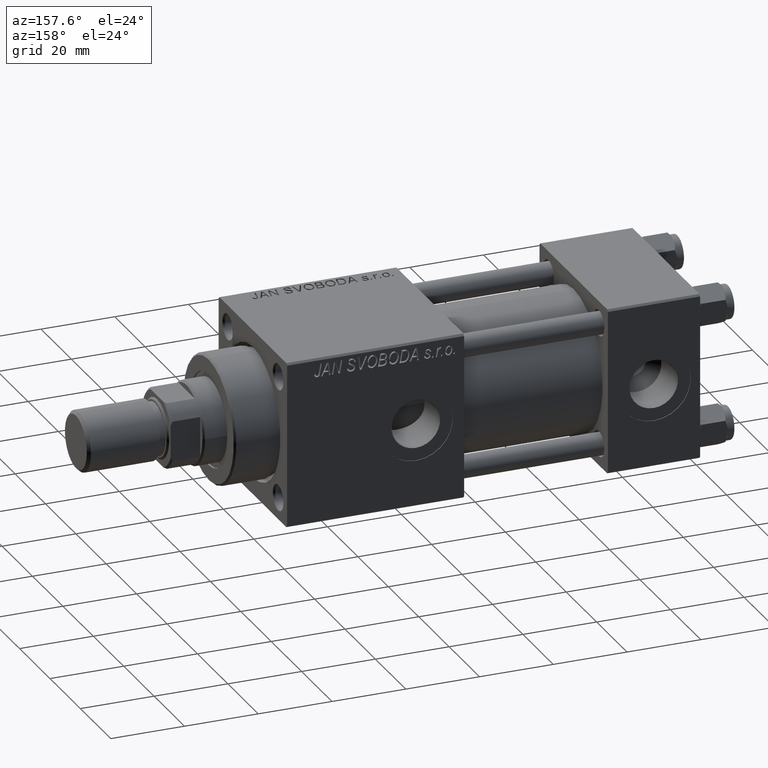
[diagram: clean part render]
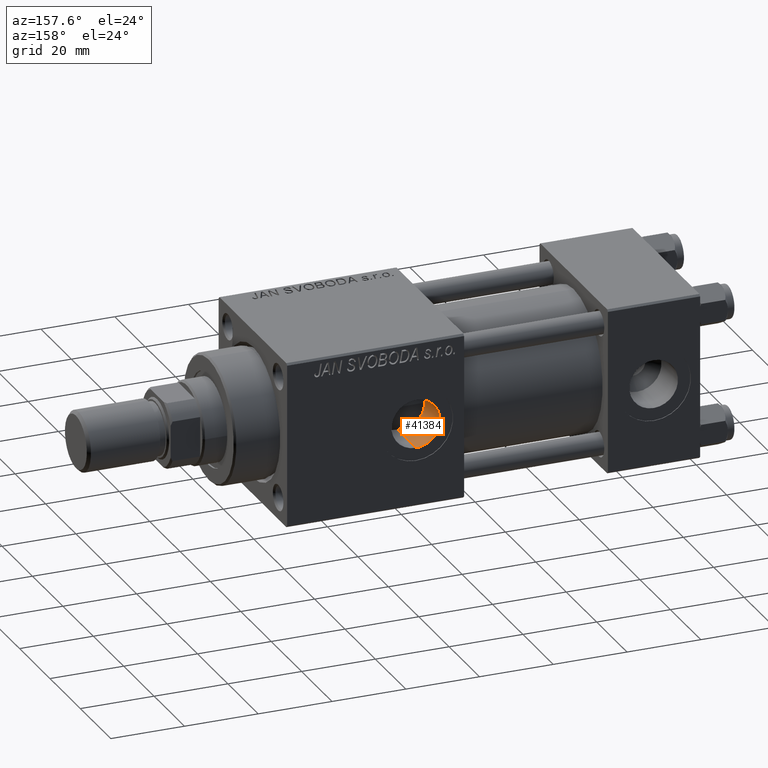
[diagram: same view with one face highlighted and labeled with its STEP entity id]
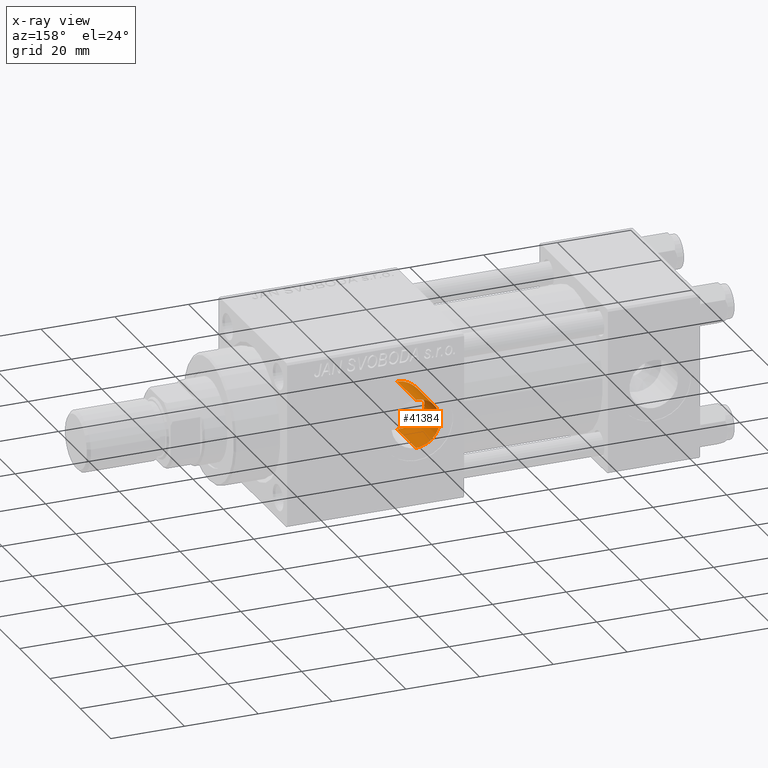
[diagram: x-ray of the same camera — body ghosted, the highlighted face saturated]
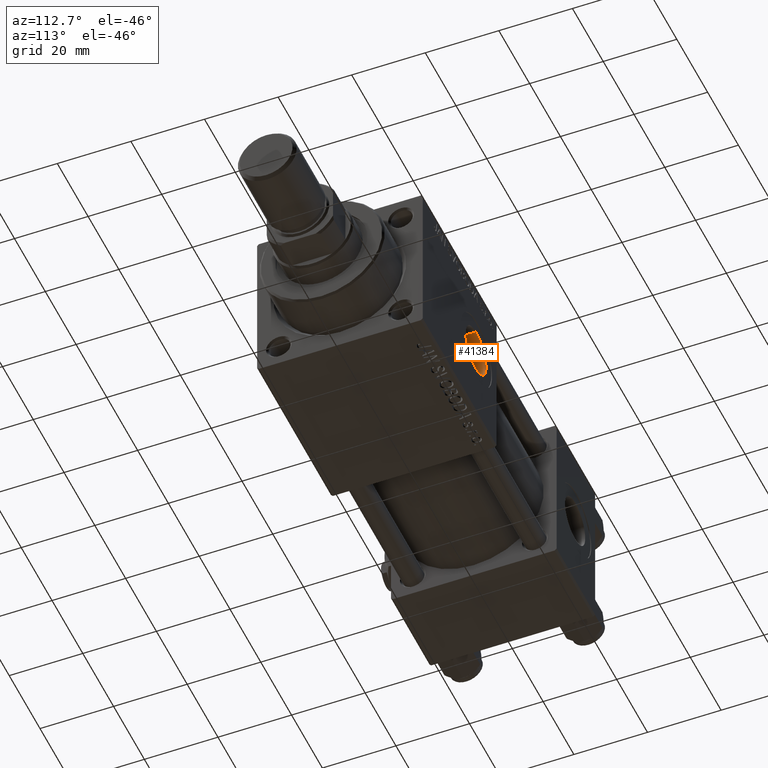
[diagram: same view with one face highlighted and labeled with its STEP entity id]
A machine part, auxiliary view. The second image highlights one B-rep face of the part: STEP entity #41384.
The next image is the same camera in x-ray: the body ghosted, the highlighted face saturated — about 0% of this face is hidden behind the body in this view.
A second angle (auxiliary view) of the same face is appended — the face is thin or edge-on in the first view.
In plain terms, the highlighted cylindrical surface (edge-blend (fillet) strip) has radius 6.58 mm, axis along (0, 1, 0).
Its self-contained STEP definition (entity closure, byte-faithful):
#180 = EDGE_LOOP ( 'NONE', ( #36654, #46548, #32559, #22689 ) ) ;
#218 = DIRECTION ( 'NONE',  ( -0.000000000000000000, 1.000000000000000000, -0.000000000000000000 ) ) ;
#461 = DIRECTION ( 'NONE',  ( -0.000000000000000000, 1.000000000000000000, -0.000000000000000000 ) ) ;
#575 = CARTESIAN_POINT ( 'NONE',  ( 70.59478156013234695, 11.90500205299394310, -1.522465113034438655 ) ) ;
#2412 = CARTESIAN_POINT ( 'NONE',  ( 73.69397546101072294, 10.56415267499855126, 5.693150710628731126 ) ) ;
#4576 = CARTESIAN_POINT ( 'NONE',  ( 71.30335276287507895, 11.53738015798572292, -3.320885605816852326 ) ) ;
#4831 = CARTESIAN_POINT ( 'NONE',  ( 75.90265550075739043, 10.09272257990949839, -6.491501553408994596 ) ) ;
#5614 = CARTESIAN_POINT ( 'NONE',  ( 72.65626215650318898, 10.93152481304933765, 4.960425101894932354 ) ) ;
#6405 = CARTESIAN_POINT ( 'NONE',  ( 73.50993103169334120, 10.62340520694157853, 5.582197786858907662 ) ) ;
#8809 = CARTESIAN_POINT ( 'NONE',  ( 75.47614133841480566, 10.14795690498758596, -6.404811640278047058 ) ) ;
#9225 = LINE ( 'NONE', #44658, #17212 ) ;
#9327 = CARTESIAN_POINT ( 'NONE',  ( 70.46469131803905839, 11.97532927873728958, 0.8814389111818408118 ) ) ;
#12302 = CARTESIAN_POINT ( 'NONE',  ( 77.00000000000000000, 22.30000000000000426, 6.580000000000002736 ) ) ;
#13124 = DIRECTION ( 'NONE',  ( 0.000000000000000000, 1.000000000000000000, 0.000000000000000000 ) ) ;
#13311 = EDGE_CURVE ( 'NONE', #31144, #50586, #22849, .T. ) ;
#13314 = CARTESIAN_POINT ( 'NONE',  ( 75.26606298117775395, 10.18178878898818596, -6.351126472267994316 ) ) ;
#13848 = CARTESIAN_POINT ( 'NONE',  ( 75.26137872084700575, 10.17559587363118467, 6.361448434608366398 ) ) ;
#14072 = B_SPLINE_CURVE_WITH_KNOTS ( 'NONE', 3,
 ( #28788, #20806, #16538, #17057, #4831, #8809, #13314, #37035, #32767, #24808, #25586, #49028, #29304, #41825, #17325, #41044, #44757, #4576, #33552, #21069, #49814, #24547, #575, #29565, #16800, #45810, #9327, #37297, #20277, #36517, #48772, #16269, #28530, #5614, #30881, #6405, #2412, #18639, #17846, #34347, #13848, #17582, #47136, #34077 ),
 .UNSPECIFIED., .F., .F.,
 ( 4, 2, 2, 2, 2, 2, 2, 2, 2, 2, 2, 2, 2, 2, 2, 2, 2, 2, 2, 2, 2, 4 ),
 ( 0.008590357070326584688, 0.009245933823934550377, 0.009901510577542517802, 0.01055708733115048349, 0.01121266408475845092, 0.01252381759197442046, 0.01317939434558238615, 0.01383497109919035531, 0.01514612460640628669, 0.01645727811362222154, 0.01711285486723018723, 0.01776843162083815292, 0.01907958512805408083, 0.02039073863527000874, 0.02170189214248594012, 0.02301304564970187150, 0.02432419915691780288, 0.02563535266413373426, 0.02629092941774168260, 0.02694650617134963441, 0.02825765967856553457, 0.02956881318578143125 ),
 .UNSPECIFIED. ) ;
#16269 = CARTESIAN_POINT ( 'NONE',  ( 71.78522723636056924, 11.30724428648134428, 4.035235631291473446 ) ) ;
#16538 = CARTESIAN_POINT ( 'NONE',  ( 76.55873453232824488, 10.04242014431498475, -6.568903955922261950 ) ) ;
#16688 = DIRECTION ( 'NONE',  ( 0.000000000000000000, 0.000000000000000000, 1.000000000000000000 ) ) ;
#16794 = EDGE_CURVE ( 'NONE', #31144, #25248, #14072, .T. ) ;
#16800 = CARTESIAN_POINT ( 'NONE',  ( 70.42021085946413450, 11.99988437873642688, -0.4415083905740593839 ) ) ;
#17057 = CARTESIAN_POINT ( 'NONE',  ( 76.11909076912574790, 10.07132008303893578, -6.524508665183241796 ) ) ;
#17212 = VECTOR ( 'NONE', #218, 1000.000000000000000 ) ;
#17325 = CARTESIAN_POINT ( 'NONE',  ( 72.49663369648428102, 10.99844243115061104, -4.802106935643947416 ) ) ;
#17582 = CARTESIAN_POINT ( 'NONE',  ( 76.12570576130687527, 10.06401201544136903, 6.536546467569310792 ) ) ;
#17846 = CARTESIAN_POINT ( 'NONE',  ( 74.26099846499428736, 10.40045460118915699, 5.986622394672217240 ) ) ;
#18639 = CARTESIAN_POINT ( 'NONE',  ( 74.06907078208804762, 10.45284026323418658, 5.895033264191284594 ) ) ;
#18891 = VERTEX_POINT ( 'NONE', #12302 ) ;
#20277 = CARTESIAN_POINT ( 'NONE',  ( 70.76700656778707810, 11.81240356407410985, 2.153087175559374788 ) ) ;
#20806 = CARTESIAN_POINT ( 'NONE',  ( 76.78081405357497147, 10.03511833512689755, -6.580000000000004512 ) ) ;
#21069 = CARTESIAN_POINT ( 'NONE',  ( 70.85155364593674676, 11.76868526175016427, -2.353465099783907277 ) ) ;
#22689 = ORIENTED_EDGE ( 'NONE', *, *, #34881, .F. ) ;
#22849 = LINE ( 'NONE', #30809, #42886 ) ;
#24547 = CARTESIAN_POINT ( 'NONE',  ( 70.64958072901730191, 11.87554090734247758, -1.736573327823570212 ) ) ;
#24698 = FACE_OUTER_BOUND ( 'NONE', #180, .T. ) ;
#24808 = CARTESIAN_POINT ( 'NONE',  ( 74.05104312801974231, 10.45235325324470033, -5.897951781794913195 ) ) ;
#25248 = VERTEX_POINT ( 'NONE', #49428 ) ;
#25586 = CARTESIAN_POINT ( 'NONE',  ( 73.67788444707113626, 10.56555453414760137, -5.695588259402674325 ) ) ;
#25957 = AXIS2_PLACEMENT_3D ( 'NONE', #36926, #461, #16688 ) ;
#28530 = CARTESIAN_POINT ( 'NONE',  ( 72.05914697496642418, 11.18222718872542920, 4.365987520544757139 ) ) ;
#28605 = DIRECTION ( 'NONE',  ( 0.000000000000000000, 0.000000000000000000, 1.000000000000000000 ) ) ;
#28788 = CARTESIAN_POINT ( 'NONE',  ( 77.00000000000000000, 10.03511833512689577, -6.580000000000002736 ) ) ;
#29304 = CARTESIAN_POINT ( 'NONE',  ( 72.97905302529274252, 10.80966661710887955, -5.212788743056522733 ) ) ;
#29565 = CARTESIAN_POINT ( 'NONE',  ( 70.46378624166312932, 11.97582117318679984, -0.8761294634005379889 ) ) ;
#30809 = CARTESIAN_POINT ( 'NONE',  ( 77.00000000000000000, -18.61105048082993818, -6.580000000000002736 ) ) ;
#30881 = CARTESIAN_POINT ( 'NONE',  ( 72.98081940950234525, 10.80498217344099388, 5.227144681522183589 ) ) ;
#31144 = VERTEX_POINT ( 'NONE', #49941 ) ;
#32559 = ORIENTED_EDGE ( 'NONE', *, *, #40724, .T. ) ;
#32767 = CARTESIAN_POINT ( 'NONE',  ( 74.64698636425644906, 10.30549409996672239, -6.148672400876415089 ) ) ;
#33439 = CYLINDRICAL_SURFACE ( 'NONE', #25957, 6.580000000000002736 ) ;
#33552 = CARTESIAN_POINT ( 'NONE',  ( 71.10040848346579878, 11.63995794439686016, -2.945230401312897150 ) ) ;
#34077 = CARTESIAN_POINT ( 'NONE',  ( 77.00000000000000000, 10.03511833512689755, 6.580000000000002736 ) ) ;
#34347 = CARTESIAN_POINT ( 'NONE',  ( 74.85042017720637375, 10.25569107496388632, 6.233555566934216863 ) ) ;
#34881 = EDGE_CURVE ( 'NONE', #25248, #18891, #9225, .T. ) ;
#36517 = CARTESIAN_POINT ( 'NONE',  ( 71.10506805835191813, 11.63756389590209039, 2.955633420251076338 ) ) ;
#36595 = CARTESIAN_POINT ( 'NONE',  ( 77.00000000000000000, 22.30000000000000426, 0.000000000000000000 ) ) ;
#36654 = ORIENTED_EDGE ( 'NONE', *, *, #16794, .F. ) ;
#36926 = CARTESIAN_POINT ( 'NONE',  ( 77.00000000000000000, -18.61105048082993818, 0.000000000000000000 ) ) ;
#37035 = CARTESIAN_POINT ( 'NONE',  ( 74.85200873023090651, 10.26041674852087127, -6.223301258735684627 ) ) ;
#37297 = CARTESIAN_POINT ( 'NONE',  ( 70.63854847950742055, 11.88134324111738493, 1.737564006038949227 ) ) ;
#40724 = EDGE_CURVE ( 'NONE', #50586, #18891, #46361, .T. ) ;
#41044 = CARTESIAN_POINT ( 'NONE',  ( 72.05088127652044250, 11.18591469348257306, -4.356510094204549155 ) ) ;
#41384 = ADVANCED_FACE ( 'NONE', ( #24698 ), #33439, .F. ) ;
#41825 = CARTESIAN_POINT ( 'NONE',  ( 72.65241791476171329, 10.93537140601615576, -4.943653615015844771 ) ) ;
#42822 = CARTESIAN_POINT ( 'NONE',  ( 77.00000000000000000, 22.30000000000000426, -6.580000000000002736 ) ) ;
#42886 = VECTOR ( 'NONE', #47858, 1000.000000000000000 ) ;
#44658 = CARTESIAN_POINT ( 'NONE',  ( 77.00000000000000000, -18.61105048082993818, 6.580000000000002736 ) ) ;
#44757 = CARTESIAN_POINT ( 'NONE',  ( 71.78224534970949833, 11.30859472950852940, -4.031762314489300003 ) ) ;
#45485 = AXIS2_PLACEMENT_3D ( 'NONE', #36595, #13124, #28605 ) ;
#45810 = CARTESIAN_POINT ( 'NONE',  ( 70.41979065215336675, 12.00011479239335266, 0.4352007943146034563 ) ) ;
#46361 = CIRCLE ( 'NONE', #45485, 6.580000000000002736 ) ;
#46548 = ORIENTED_EDGE ( 'NONE', *, *, #13311, .T. ) ;
#47136 = CARTESIAN_POINT ( 'NONE',  ( 76.56268112840309925, 10.03511833512689577, 6.580000000000000959 ) ) ;
#47858 = DIRECTION ( 'NONE',  ( -0.000000000000000000, 1.000000000000000000, -0.000000000000000000 ) ) ;
#48772 = CARTESIAN_POINT ( 'NONE',  ( 71.30950478932065550, 11.53436838845258450, 3.330952691599677440 ) ) ;
#49028 = CARTESIAN_POINT ( 'NONE',  ( 73.15024877014404581, 10.74694874131891353, -5.340483106436814786 ) ) ;
#49428 = CARTESIAN_POINT ( 'NONE',  ( 77.00000000000000000, 10.03511833512689755, 6.580000000000002736 ) ) ;
#49814 = CARTESIAN_POINT ( 'NONE',  ( 70.77782898074843843, 11.80745777538546015, -2.151301849430340862 ) ) ;
#49941 = CARTESIAN_POINT ( 'NONE',  ( 77.00000000000000000, 10.03511833512689577, -6.580000000000002736 ) ) ;
#50586 = VERTEX_POINT ( 'NONE', #42822 ) ;